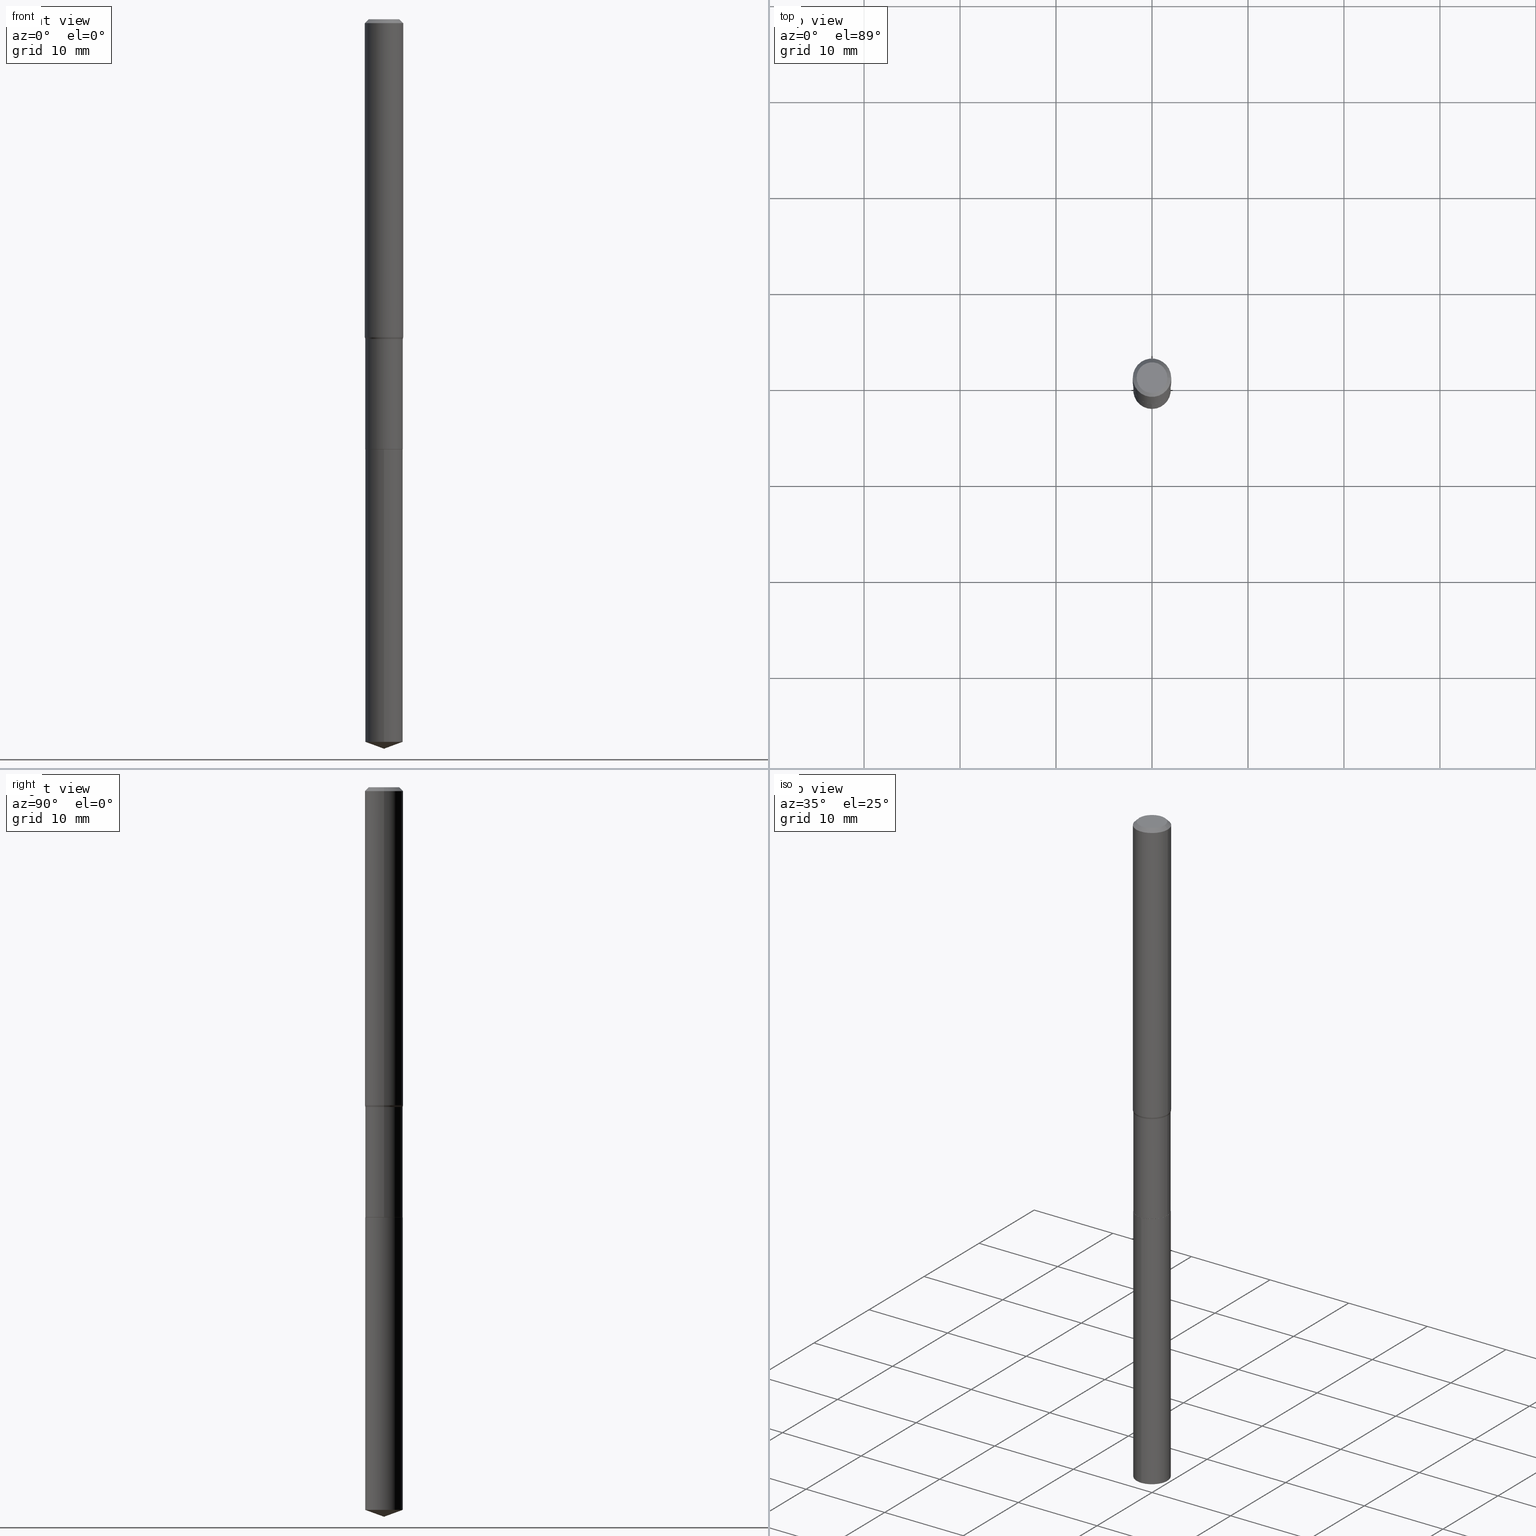
[diagram: canonical four-view strip — front | top / right | iso, engineering-drawing reading convention]
A machine part, canonical four-view strip (front | top / right | iso — engineering-drawing reading convention). The complete STEP part file that produces these views, byte-faithful:
ISO-10303-21;
HEADER;
FILE_DESCRIPTION (( 'STEP AP203' ),
    '1' );
FILE_NAME ('06029.STEP',
    '2024-04-23T19:04:45',
    ( '' ),
    ( '' ),
    'SwSTEP 2.0',
    'SolidWorks 2023',
    '' );
FILE_SCHEMA (( 'CONFIG_CONTROL_DESIGN' ));
ENDSEC;

DATA;
#1 = DIRECTION ( 'NONE',  ( 1.000000000000000000, -6.982962677686265133E-15, 0.000000000000000000 ) ) ;
#2 = EDGE_CURVE ( 'NONE', #318, #30, #306, .T. ) ;
#3 = DIRECTION ( 'NONE',  ( -2.445468806185136597E-29, 3.491481338843145583E-15, 1.000000000000000000 ) ) ;
#4 = CC_DESIGN_PERSON_AND_ORGANIZATION_ASSIGNMENT ( #188, #125, ( #406 ) ) ;
#5 = DIRECTION ( 'NONE',  ( -2.445468806185136597E-29, 3.491481338843145583E-15, 1.000000000000000000 ) ) ;
#6 = CARTESIAN_POINT ( 'NONE',  ( 0.000000000000000000, 0.000000000000000000, 0.000000000000000000 ) ) ;
#7 = VECTOR ( 'NONE', #390, 39.37007874015747433 ) ;
#8 = DIRECTION ( 'NONE',  ( 1.000000000000000000, -6.982962677686265133E-15, 0.000000000000000000 ) ) ;
#9 = DIRECTION ( 'NONE',  ( -2.445469513673863018E-29, 3.491480325679021518E-15, 1.000000000000000000 ) ) ;
#10 = LINE ( 'NONE', #20, #51 ) ;
#11 = EDGE_CURVE ( 'NONE', #247, #47, #228, .T. ) ;
#12 = CARTESIAN_POINT ( 'NONE',  ( 3.189223658526408074E-29, -4.553366152526185029E-15, -1.304135898384861436 ) ) ;
#13 = COORDINATED_UNIVERSAL_TIME_OFFSET ( 5, 0, .BEHIND. ) ;
#14 = AXIS2_PLACEMENT_3D ( 'NONE', #57, #17, #209 ) ;
#15 = APPROVAL_PERSON_ORGANIZATION ( #22, #372, #317 ) ;
#16 = ORIENTED_EDGE ( 'NONE', *, *, #11, .F. ) ;
#17 = DIRECTION ( 'NONE',  ( -2.445469513673863018E-29, 3.491480325679021518E-15, 1.000000000000000000 ) ) ;
#18 = DIRECTION ( 'NONE',  ( -2.445469513673863018E-29, 3.491480325679021518E-15, 1.000000000000000000 ) ) ;
#19 = ORIENTED_EDGE ( 'NONE', *, *, #384, .F. ) ;
#20 = CARTESIAN_POINT ( 'NONE',  ( -0.07875000000000000056, 4.949174797810136167E-16, -0.01575000000000009032 ) ) ;
#21 = CARTESIAN_POINT ( 'NONE',  ( -0.07625000000000001221, -5.616485949434463860E-15, -1.763799999999999812 ) ) ;
#22 = PERSON_AND_ORGANIZATION ( #279, #64 ) ;
#23 = ORIENTED_EDGE ( 'NONE', *, *, #348, .F. ) ;
#24 = FACE_OUTER_BOUND ( 'NONE', #370, .T. ) ;
#25 = APPROVAL_DATE_TIME ( #212, #372 ) ;
#26 = AXIS2_PLACEMENT_3D ( 'NONE', #391, #471, #200 ) ;
#27 = ORIENTED_EDGE ( 'NONE', *, *, #68, .F. ) ;
#28 = CARTESIAN_POINT ( 'NONE',  ( 4.313317880349343751E-29, -6.158274785451540536E-15, -1.763799999999999812 ) ) ;
#29 = ORIENTED_EDGE ( 'NONE', *, *, #60, .F. ) ;
#30 = VERTEX_POINT ( 'NONE', #230 ) ;
#31 = ADVANCED_FACE ( 'NONE', ( #115 ), #143, .T. ) ;
#32 = AXIS2_PLACEMENT_3D ( 'NONE', #461, #202, #350 ) ;
#33 = MANIFOLD_SOLID_BREP ( 'Body-Move/Copy2[1]', #309 ) ;
#34 = CARTESIAN_POINT ( 'NONE',  ( -5.359423855123483475E-16, -0.07675000000001032385, -2.964165284520069665 ) ) ;
#35 = CIRCLE ( 'NONE', #222, 0.07625000000000001221 ) ;
#36 = CLOSED_SHELL ( 'NONE', ( #300, #419, #466, #31, #324, #369, #66, #184, #336, #488, #445, #262 ) ) ;
#37 = MANIFOLD_SOLID_BREP ( 'Body-Move/Copy2[2]', #36 ) ;
#38 = PERSON_AND_ORGANIZATION_ROLE ( 'design_owner' ) ;
#39 = DIRECTION ( 'NONE',  ( 6.676917655467989428E-15, 0.9396926207859126468, 0.3420201433256570001 ) ) ;
#40 = CARTESIAN_POINT ( 'NONE',  ( 7.317089353748235362E-29, -1.044685828246419935E-14, -2.992100000000000204 ) ) ;
#41 = CC_DESIGN_PERSON_AND_ORGANIZATION_ASSIGNMENT ( #246, #320, ( #481 ) ) ;
#42 = FACE_OUTER_BOUND ( 'NONE', #59, .T. ) ;
#43 = ORIENTED_EDGE ( 'NONE', *, *, #289, .F. ) ;
#44 = CONICAL_SURFACE ( 'NONE', #295, 0.07625000000000001221, 0.7853981633975507526 ) ;
#45 = DIRECTION ( 'NONE',  ( -2.445468806185136597E-29, 3.491481338843145583E-15, 1.000000000000000000 ) ) ;
#46 = DIRECTION ( 'NONE',  ( -2.445468806185136877E-29, 3.491481338843145188E-15, 1.000000000000000000 ) ) ;
#47 = VERTEX_POINT ( 'NONE', #418 ) ;
#48 = CARTESIAN_POINT ( 'NONE',  ( 3.851613369741612172E-31, -5.499083108677985842E-17, -0.01575000000000009032 ) ) ;
#49 = EDGE_CURVE ( 'NONE', #429, #381, #380, .T. ) ;
#50 = CARTESIAN_POINT ( 'NONE',  ( 4.312095145946251510E-29, -6.156529044782119032E-15, -1.763300000000000090 ) ) ;
#51 = VECTOR ( 'NONE', #129, 39.37007874015748854 ) ;
#52 = LINE ( 'NONE', #245, #256 ) ;
#53 = EDGE_LOOP ( 'NONE', ( #472, #65, #396 ) ) ;
#54 = LINE ( 'NONE', #281, #114 ) ;
#55 = CARTESIAN_POINT ( 'NONE',  ( 7.317089331863565337E-29, -1.044685828246419935E-14, -2.992100000000000204 ) ) ;
#56 = VERTEX_POINT ( 'NONE', #198 ) ;
#57 = CARTESIAN_POINT ( 'NONE',  ( 4.313317880349343751E-29, -6.158274785451540536E-15, -1.763799999999999812 ) ) ;
#58 = DIRECTION ( 'NONE',  ( 0.7071067811866199593, -2.468850131083015945E-15, 0.7071067811864750752 ) ) ;
#59 = EDGE_LOOP ( 'NONE', ( #214, #355 ) ) ;
#60 = EDGE_CURVE ( 'NONE', #438, #442, #224, .T. ) ;
#61 = CALENDAR_DATE ( 2024, 23, 4 ) ;
#62 = ORIENTED_EDGE ( 'NONE', *, *, #107, .F. ) ;
#63 = CARTESIAN_POINT ( 'NONE',  ( 7.317086836126334158E-29, -1.044686185650196432E-14, -2.992100000000000204 ) ) ;
#64 = ORGANIZATION ( 'UNSPECIFIED', 'UNSPECIFIED', '' ) ;
#65 = ORIENTED_EDGE ( 'NONE', *, *, #440, .T. ) ;
#66 = ADVANCED_FACE ( 'NONE', ( #415 ), #292, .T. ) ;
#67 = ORIENTED_EDGE ( 'NONE', *, *, #414, .F. ) ;
#68 = EDGE_CURVE ( 'NONE', #247, #327, #373, .T. ) ;
#69 = CARTESIAN_POINT ( 'NONE',  ( -0.07875000000000016709, -3.993813748115104650E-15, -1.304135898384861436 ) ) ;
#70 = AXIS2_PLACEMENT_3D ( 'NONE', #424, #155, #303 ) ;
#71 = CIRCLE ( 'NONE', #383, 0.07625000000000001221 ) ;
#72 = APPLICATION_PROTOCOL_DEFINITION ( 'international standard', 'config_control_design', 1994, #433 ) ;
#73 = CARTESIAN_POINT ( 'NONE',  ( 5.453415496959199755E-16, 0.07674999999999385092, -1.763800000000000257 ) ) ;
#74 = AXIS2_PLACEMENT_3D ( 'NONE', #392, #136, #286 ) ;
#75 = EDGE_CURVE ( 'NONE', #30, #56, #201, .T. ) ;
#76 = DIRECTION ( 'NONE',  ( -2.445469513673863018E-29, 3.491480325679021518E-15, 1.000000000000000000 ) ) ;
#77 = AXIS2_PLACEMENT_3D ( 'NONE', #120, #397, #175 ) ;
#78 = DIRECTION ( 'NONE',  ( -2.445468806185136597E-29, 3.491481338843145583E-15, 1.000000000000000000 ) ) ;
#79 = CYLINDRICAL_SURFACE ( 'NONE', #32, 0.07674999999999997102 ) ;
#80 = CARTESIAN_POINT ( 'NONE',  ( 3.207476886192425525E-29, -4.579426924026669600E-15, -1.311600000000000099 ) ) ;
#81 = CARTESIAN_POINT ( 'NONE',  ( -0.06300000000000000044, 4.674220642376242452E-16, -3.855188123719040041E-18 ) ) ;
#82 = DIRECTION ( 'NONE',  ( 1.000000000000000000, -6.982962677686265133E-15, 0.000000000000000000 ) ) ;
#83 = DIRECTION ( 'NONE',  ( -0.7071067811866199593, 7.493145998870616062E-15, 0.7071067811864750752 ) ) ;
#84 = DIRECTION ( 'NONE',  ( -6.982962677686265133E-15, -1.000000000000000000, 3.559411066663534686E-15 ) ) ;
#85 = ORIENTED_EDGE ( 'NONE', *, *, #275, .F. ) ;
#86 = CARTESIAN_POINT ( 'NONE',  ( -5.359423855123778312E-16, -0.07675000000000616052, -1.763799999999999590 ) ) ;
#87 = ORIENTED_EDGE ( 'NONE', *, *, #486, .F. ) ;
#88 = DIRECTION ( 'NONE',  ( -2.445468806185136597E-29, 3.491481338843145583E-15, 1.000000000000000000 ) ) ;
#89 = CIRCLE ( 'NONE', #449, 0.07675000000000001266 ) ;
#90 = DIRECTION ( 'NONE',  ( 2.445468806185136597E-29, -3.491481338843145583E-15, -1.000000000000000000 ) ) ;
#91 = AXIS2_PLACEMENT_3D ( 'NONE', #240, #243, #84 ) ;
#92 = LOCAL_TIME ( 15, 4, 45.00000000000000000, #237 ) ;
#93 = EDGE_LOOP ( 'NONE', ( #371, #325, #27, #297 ) ) ;
#94 = CC_DESIGN_PERSON_AND_ORGANIZATION_ASSIGNMENT ( #291, #441, ( #296 ) ) ;
#95 = DIRECTION ( 'NONE',  ( 1.000000000000000000, -6.982962677686265922E-15, 0.000000000000000000 ) ) ;
#96 = DATE_AND_TIME ( #142, #411 ) ;
#97 = VECTOR ( 'NONE', #39, 39.37007874015748143 ) ;
#98 = CIRCLE ( 'NONE', #77, 0.06300000000000000044 ) ;
#99 = ORIENTED_EDGE ( 'NONE', *, *, #252, .F. ) ;
#100 = VECTOR ( 'NONE', #46, 39.37007874015748143 ) ;
#101 = ORIENTED_EDGE ( 'NONE', *, *, #334, .T. ) ;
#102 = ORIENTED_EDGE ( 'NONE', *, *, #440, .F. ) ;
#103 = EDGE_CURVE ( 'NONE', #438, #247, #118, .T. ) ;
#104 = CIRCLE ( 'NONE', #226, 0.07675000000000001266 ) ;
#105 = ORIENTED_EDGE ( 'NONE', *, *, #160, .F. ) ;
#106 = ORIENTED_EDGE ( 'NONE', *, *, #358, .T. ) ;
#107 = EDGE_CURVE ( 'NONE', #269, #177, #35, .T. ) ;
#108 = LINE ( 'NONE', #63, #179 ) ;
#109 = AXIS2_PLACEMENT_3D ( 'NONE', #422, #45, #197 ) ;
#110 = FACE_OUTER_BOUND ( 'NONE', #254, .T. ) ;
#111 = PRODUCT_RELATED_PRODUCT_CATEGORY ( 'detail', '', ( #447 ) ) ;
#112 = DIRECTION ( 'NONE',  ( 0.000000000000000000, 0.000000000000000000, 1.000000000000000000 ) ) ;
#113 = AXIS2_PLACEMENT_3D ( 'NONE', #345, #308, #460 ) ;
#114 = VECTOR ( 'NONE', #430, 39.37007874015748854 ) ;
#115 = FACE_OUTER_BOUND ( 'NONE', #236, .T. ) ;
#116 = CARTESIAN_POINT ( 'NONE',  ( 9.427742298522557911E-47, -1.346031739168366987E-32, -3.855188123715866879E-18 ) ) ;
#117 = AXIS2_PLACEMENT_3D ( 'NONE', #368, #260, #95 ) ;
#118 = LINE ( 'NONE', #341, #249 ) ;
#119 = ORIENTED_EDGE ( 'NONE', *, *, #145, .F. ) ;
#120 = CARTESIAN_POINT ( 'NONE',  ( 9.427742298522557911E-47, -1.346031739168366987E-32, -3.855188123715866879E-18 ) ) ;
#121 = ADVANCED_FACE ( 'NONE', ( #462 ), #290, .T. ) ;
#122 = SHAPE_DEFINITION_REPRESENTATION ( #487, #128 ) ;
#123 = FACE_OUTER_BOUND ( 'NONE', #294, .T. ) ;
#124 = ORIENTED_EDGE ( 'NONE', *, *, #49, .T. ) ;
#125 = PERSON_AND_ORGANIZATION_ROLE ( 'classification_officer' ) ;
#126 = APPROVAL_PERSON_ORGANIZATION ( #253, #398, #137 ) ;
#127 = CARTESIAN_POINT ( 'NONE',  ( -0.07674999999999994327, -4.034085374330792814E-15, -1.311600000000000099 ) ) ;
#128 = ADVANCED_BREP_SHAPE_REPRESENTATION ( '06029', ( #33, #37, #489 ), #152 ) ;
#129 = DIRECTION ( 'NONE',  ( -0.7071067811865454633, 2.468850131082235761E-15, -0.7071067811865493491 ) ) ;
#130 = CARTESIAN_POINT ( 'NONE',  ( 3.851613369741612172E-31, -5.499083108677985842E-17, -0.01575000000000009032 ) ) ;
#131 = ORIENTED_EDGE ( 'NONE', *, *, #265, .T. ) ;
#132 = DIRECTION ( 'NONE',  ( -2.445469513673863018E-29, 3.491480325679021518E-15, 1.000000000000000000 ) ) ;
#133 = APPROVAL_ROLE ( '' ) ;
#134 = CYLINDRICAL_SURFACE ( 'NONE', #159, 0.07674999999999997102 ) ;
#135 = ORIENTED_EDGE ( 'NONE', *, *, #476, .T. ) ;
#136 = DIRECTION ( 'NONE',  ( -2.445468806185136597E-29, 3.491481338843145583E-15, 1.000000000000000000 ) ) ;
#137 = APPROVAL_ROLE ( '' ) ;
#138 = AXIS2_PLACEMENT_3D ( 'NONE', #176, #323, #241 ) ;
#139 = CC_DESIGN_SECURITY_CLASSIFICATION ( #406, ( #296 ) ) ;
#140 = VERTEX_POINT ( 'NONE', #156 ) ;
#141 = MECHANICAL_CONTEXT ( 'NONE', #433, 'mechanical' ) ;
#142 = CALENDAR_DATE ( 2024, 23, 4 ) ;
#143 = CONICAL_SURFACE ( 'NONE', #374, 0.07674999999999994327, 0.2617993877991501295 ) ;
#144 = EDGE_LOOP ( 'NONE', ( #180, #299, #379, #425 ) ) ;
#145 = EDGE_CURVE ( 'NONE', #477, #30, #307, .T. ) ;
#146 = AXIS2_PLACEMENT_3D ( 'NONE', #50, #349, #227 ) ;
#147 = ORIENTED_EDGE ( 'NONE', *, *, #49, .F. ) ;
#148 = CONICAL_SURFACE ( 'NONE', #138, 108.1684023407361792, 1.221730476396039711 ) ;
#149 = EDGE_LOOP ( 'NONE', ( #87, #257, #364, #242 ) ) ;
#150 = DIRECTION ( 'NONE',  ( 1.000000000000000000, -6.982962677686265922E-15, 4.876176775795935793E-29 ) ) ;
#151 = SECURITY_CLASSIFICATION_LEVEL ( 'unclassified' ) ;
#152 =( GEOMETRIC_REPRESENTATION_CONTEXT ( 3 ) GLOBAL_UNCERTAINTY_ASSIGNED_CONTEXT ( ( #417 ) ) GLOBAL_UNIT_ASSIGNED_CONTEXT ( ( #478, #365, #220 ) ) REPRESENTATION_CONTEXT ( 'NONE', 'WORKASPACE' ) );
#153 = CC_DESIGN_APPROVAL ( #372, ( #296 ) ) ;
#154 =( LENGTH_UNIT ( ) NAMED_UNIT ( * ) SI_UNIT ( $, .METRE. ) );
#155 = DIRECTION ( 'NONE',  ( -2.445469513673863018E-29, 3.491480325679021518E-15, 1.000000000000000000 ) ) ;
#156 = CARTESIAN_POINT ( 'NONE',  ( 0.07875000000000000056, -6.048991419545733705E-16, -0.01575000000000009032 ) ) ;
#157 = EDGE_LOOP ( 'NONE', ( #272, #480, #468, #135 ) ) ;
#158 = FACE_OUTER_BOUND ( 'NONE', #331, .T. ) ;
#159 = AXIS2_PLACEMENT_3D ( 'NONE', #6, #273, #359 ) ;
#160 = EDGE_CURVE ( 'NONE', #444, #403, #389, .T. ) ;
#161 = PLANE ( 'NONE',  #113 ) ;
#162 = FACE_OUTER_BOUND ( 'NONE', #157, .T. ) ;
#163 = CARTESIAN_POINT ( 'NONE',  ( 3.207476886192425525E-29, -4.579426924026669600E-15, -1.311600000000000099 ) ) ;
#164 = DIRECTION ( 'NONE',  ( -0.2588190451025214611, 5.211531920934551042E-15, 0.9659258262890682012 ) ) ;
#165 = DIRECTION ( 'NONE',  ( 1.000000000000000000, -6.982962677686271444E-15, 0.000000000000000000 ) ) ;
#166 = CC_DESIGN_APPROVAL ( #398, ( #481 ) ) ;
#167 = AXIS2_PLACEMENT_3D ( 'NONE', #270, #393, #312 ) ;
#168 = DIRECTION ( 'NONE',  ( -2.445468806185136597E-29, 3.491481338843145583E-15, 1.000000000000000000 ) ) ;
#169 = LOCAL_TIME ( 15, 4, 45.00000000000000000, #402 ) ;
#170 = DATE_TIME_ROLE ( 'creation_date' ) ;
#171 = ORIENTED_EDGE ( 'NONE', *, *, #145, .T. ) ;
#172 = DIRECTION ( 'NONE',  ( -6.982962677686265133E-15, -1.000000000000000000, 3.559411066663534686E-15 ) ) ;
#173 = LINE ( 'NONE', #127, #195 ) ;
#174 = ORIENTED_EDGE ( 'NONE', *, *, #160, .T. ) ;
#175 = DIRECTION ( 'NONE',  ( 1.000000000000000000, -6.982962677686265922E-15, 4.875905316334701673E-29 ) ) ;
#176 = CARTESIAN_POINT ( 'NONE',  ( -8.896123922599965790E-28, 1.270129952722106834E-13, 36.37797874015748079 ) ) ;
#177 = VERTEX_POINT ( 'NONE', #266 ) ;
#178 = CARTESIAN_POINT ( 'NONE',  ( -0.07674999999999997102, 5.453415496958766868E-16, -3.775282681770638931E-30 ) ) ;
#179 = VECTOR ( 'NONE', #298, 39.37007874015748854 ) ;
#180 = ORIENTED_EDGE ( 'NONE', *, *, #75, .F. ) ;
#181 = PLANE ( 'NONE',  #475 ) ;
#182 = ORIENTED_EDGE ( 'NONE', *, *, #239, .F. ) ;
#183 = ORIENTED_EDGE ( 'NONE', *, *, #342, .F. ) ;
#184 = ADVANCED_FACE ( 'NONE', ( #158 ), #458, .T. ) ;
#185 = DIRECTION ( 'NONE',  ( 2.438088387897960049E-29, -3.491481338843145188E-15, -1.000000000000000000 ) ) ;
#186 = APPROVAL ( #346, 'UNSPECIFIED' ) ;
#187 = CARTESIAN_POINT ( 'NONE',  ( 0.000000000000000000, 0.000000000000000000, 0.000000000000000000 ) ) ;
#188 = PERSON_AND_ORGANIZATION ( #279, #64 ) ;
#189 = CIRCLE ( 'NONE', #14, 0.07675000000000001266 ) ;
#190 = ADVANCED_FACE ( 'NONE', ( #42 ), #161, .F. ) ;
#191 = APPLICATION_PROTOCOL_DEFINITION ( 'international standard', 'config_control_design', 1994, #457 ) ;
#192 = DIRECTION ( 'NONE',  ( -2.445468806185136597E-29, 3.491481338843145583E-15, 1.000000000000000000 ) ) ;
#193 = CARTESIAN_POINT ( 'NONE',  ( 3.207476886192425525E-29, -4.579426924026669600E-15, -1.311600000000000099 ) ) ;
#194 = DIRECTION ( 'NONE',  ( 1.000000000000000000, -6.982962677686265922E-15, 4.875905316334701673E-29 ) ) ;
#195 = VECTOR ( 'NONE', #164, 39.37007874015747433 ) ;
#196 = DATE_AND_TIME ( #282, #92 ) ;
#197 = DIRECTION ( 'NONE',  ( 1.000000000000000000, -6.982962677686271444E-15, 0.000000000000000000 ) ) ;
#198 = CARTESIAN_POINT ( 'NONE',  ( 5.453415496959496564E-16, 0.07674999999999386480, -1.763800000000000257 ) ) ;
#199 = AXIS2_PLACEMENT_3D ( 'NONE', #116, #3, #194 ) ;
#200 = DIRECTION ( 'NONE',  ( 1.000000000000000000, -6.982962677686265133E-15, 0.000000000000000000 ) ) ;
#201 = LINE ( 'NONE', #73, #401 ) ;
#202 = DIRECTION ( 'NONE',  ( -2.445468806185136597E-29, 3.491481338843145583E-15, 1.000000000000000000 ) ) ;
#203 = ORIENTED_EDGE ( 'NONE', *, *, #275, .T. ) ;
#204 = CARTESIAN_POINT ( 'NONE',  ( 4.313317880349343751E-29, -6.158274785451540536E-15, -1.763799999999999812 ) ) ;
#205 = EDGE_CURVE ( 'NONE', #403, #444, #98, .T. ) ;
#206 = AXIS2_PLACEMENT_3D ( 'NONE', #12, #168, #316 ) ;
#207 = CARTESIAN_POINT ( 'NONE',  ( -0.07674999999999994327, -4.822636434708517136E-15, -1.311600000000000099 ) ) ;
#208 = EDGE_LOOP ( 'NONE', ( #216, #203, #29, #421 ) ) ;
#209 = DIRECTION ( 'NONE',  ( -6.982962677686265133E-15, -1.000000000000000000, 3.559411066663534686E-15 ) ) ;
#210 = CARTESIAN_POINT ( 'NONE',  ( 0.07625000000000001221, -6.690725689625118057E-15, -1.763799999999999812 ) ) ;
#211 = ORIENTED_EDGE ( 'NONE', *, *, #225, .F. ) ;
#212 = DATE_AND_TIME ( #61, #169 ) ;
#213 = EDGE_CURVE ( 'NONE', #444, #140, #54, .T. ) ;
#214 = ORIENTED_EDGE ( 'NONE', *, *, #252, .T. ) ;
#215 = CARTESIAN_POINT ( 'NONE',  ( 0.000000000000000000, 0.000000000000000000, 0.000000000000000000 ) ) ;
#216 = ORIENTED_EDGE ( 'NONE', *, *, #229, .T. ) ;
#217 = AXIS2_PLACEMENT_3D ( 'NONE', #268, #78, #382 ) ;
#218 = EDGE_LOOP ( 'NONE', ( #171, #251, #99, #23 ) ) ;
#219 = CONICAL_SURFACE ( 'NONE', #302, 0.07875000000000000056, 0.7853981633974456145 ) ;
#220 =( NAMED_UNIT ( * ) SI_UNIT ( $, .STERADIAN. ) SOLID_ANGLE_UNIT ( ) );
#221 = CALENDAR_DATE ( 2024, 23, 4 ) ;
#222 = AXIS2_PLACEMENT_3D ( 'NONE', #490, #5, #1 ) ;
#223 = LINE ( 'NONE', #178, #394 ) ;
#224 = CIRCLE ( 'NONE', #146, 0.07675000000000001266 ) ;
#225 = EDGE_CURVE ( 'NONE', #403, #381, #10, .T. ) ;
#226 = AXIS2_PLACEMENT_3D ( 'NONE', #420, #18, #463 ) ;
#227 = DIRECTION ( 'NONE',  ( 1.000000000000000000, -6.982962677686271444E-15, 0.000000000000000000 ) ) ;
#228 = LINE ( 'NONE', #311, #7 ) ;
#229 = EDGE_CURVE ( 'NONE', #177, #269, #71, .T. ) ;
#230 = CARTESIAN_POINT ( 'NONE',  ( 5.453415496959491634E-16, 0.07674999999998964595, -2.964165284520069665 ) ) ;
#231 = EDGE_CURVE ( 'NONE', #56, #271, #89, .T. ) ;
#232 = CIRCLE ( 'NONE', #244, 0.07875000000000016709 ) ;
#233 = FACE_OUTER_BOUND ( 'NONE', #208, .T. ) ;
#234 = DIRECTION ( 'NONE',  ( -2.445468806185136597E-29, 3.491481338843145583E-15, 1.000000000000000000 ) ) ;
#235 = FACE_OUTER_BOUND ( 'NONE', #144, .T. ) ;
#236 = EDGE_LOOP ( 'NONE', ( #293, #446, #182, #16 ) ) ;
#237 = COORDINATED_UNIVERSAL_TIME_OFFSET ( 5, 0, .BEHIND. ) ;
#238 = LINE ( 'NONE', #426, #434 ) ;
#239 = EDGE_CURVE ( 'NONE', #47, #429, #232, .T. ) ;
#240 = CARTESIAN_POINT ( 'NONE',  ( 4.313317880349343751E-29, -6.158274785451540536E-15, -1.763799999999999812 ) ) ;
#241 = DIRECTION ( 'NONE',  ( -6.982962677686265922E-15, -1.000000000000000000, 3.475157955500633045E-15 ) ) ;
#242 = ORIENTED_EDGE ( 'NONE', *, *, #265, .F. ) ;
#243 = DIRECTION ( 'NONE',  ( -2.445469513673863018E-29, 3.491480325679021518E-15, 1.000000000000000000 ) ) ;
#244 = AXIS2_PLACEMENT_3D ( 'NONE', #464, #277, #165 ) ;
#245 = CARTESIAN_POINT ( 'NONE',  ( -5.359423855123778312E-16, -0.07675000000000616052, -1.763799999999999590 ) ) ;
#246 = PERSON_AND_ORGANIZATION ( #279, #64 ) ;
#247 = VERTEX_POINT ( 'NONE', #361 ) ;
#248 = ADVANCED_FACE ( 'NONE', ( #427 ), #319, .T. ) ;
#249 = VECTOR ( 'NONE', #416, 39.37007874015748143 ) ;
#250 = APPROVAL_STATUS ( 'not_yet_approved' ) ;
#251 = ORIENTED_EDGE ( 'NONE', *, *, #75, .T. ) ;
#252 = EDGE_CURVE ( 'NONE', #271, #56, #189, .T. ) ;
#253 = PERSON_AND_ORGANIZATION ( #279, #64 ) ;
#254 = EDGE_LOOP ( 'NONE', ( #407, #124, #43, #329 ) ) ;
#255 = CC_DESIGN_DATE_AND_TIME_ASSIGNMENT ( #196, #352, ( #406 ) ) ;
#256 = VECTOR ( 'NONE', #385, 39.37007874015748143 ) ;
#257 = ORIENTED_EDGE ( 'NONE', *, *, #384, .T. ) ;
#258 = FACE_OUTER_BOUND ( 'NONE', #400, .T. ) ;
#259 = AXIS2_PLACEMENT_3D ( 'NONE', #335, #185, #375 ) ;
#260 = DIRECTION ( 'NONE',  ( -2.445468806185136597E-29, 3.491481338843145583E-15, 1.000000000000000000 ) ) ;
#261 = DIMENSIONAL_EXPONENTS ( 1.000000000000000000, 0.000000000000000000, 0.000000000000000000, 0.000000000000000000, 0.000000000000000000, 0.000000000000000000, 0.000000000000000000 ) ;
#262 = ADVANCED_FACE ( 'NONE', ( #314 ), #44, .T. ) ;
#263 = DIRECTION ( 'NONE',  ( 1.000000000000000000, 0.000000000000000000, 0.000000000000000000 ) ) ;
#264 = DIRECTION ( 'NONE',  ( -2.445468806185136597E-29, 3.491481338843145583E-15, 1.000000000000000000 ) ) ;
#265 = EDGE_CURVE ( 'NONE', #327, #247, #485, .T. ) ;
#266 = CARTESIAN_POINT ( 'NONE',  ( 0.07625000000000001221, -6.690725689625118057E-15, -1.763799999999999812 ) ) ;
#267 = CC_DESIGN_PERSON_AND_ORGANIZATION_ASSIGNMENT ( #326, #479, ( #296 ) ) ;
#268 = CARTESIAN_POINT ( 'NONE',  ( 0.000000000000000000, 0.000000000000000000, 0.000000000000000000 ) ) ;
#269 = VERTEX_POINT ( 'NONE', #436 ) ;
#270 = CARTESIAN_POINT ( 'NONE',  ( 3.851613369741612172E-31, -5.499083108677985842E-17, -0.01575000000000009032 ) ) ;
#271 = VERTEX_POINT ( 'NONE', #86 ) ;
#272 = ORIENTED_EDGE ( 'NONE', *, *, #213, .F. ) ;
#273 = DIRECTION ( 'NONE',  ( -2.445468806185136597E-29, 3.491481338843145583E-15, 1.000000000000000000 ) ) ;
#274 = CARTESIAN_POINT ( 'NONE',  ( -0.07875000000000008382, 5.595524044110794920E-16, -3.873661383575742696E-30 ) ) ;
#275 = EDGE_CURVE ( 'NONE', #269, #442, #276, .T. ) ;
#276 = LINE ( 'NONE', #21, #367 ) ;
#277 = DIRECTION ( 'NONE',  ( -2.445468806185136597E-29, 3.491481338843145583E-15, 1.000000000000000000 ) ) ;
#278 = DIRECTION ( 'NONE',  ( 2.445468806185136597E-29, -3.491481338843145583E-15, -1.000000000000000000 ) ) ;
#279 = PERSON ( 'UNSPECIFIED', 'UNSPECIFIED', 'UNSPECIFIED', ('UNSPECIFIED'), ('UNSPECIFIED'), ('UNSPECIFIED') ) ;
#280 = ORIENTED_EDGE ( 'NONE', *, *, #476, .F. ) ;
#281 = CARTESIAN_POINT ( 'NONE',  ( 0.07875000000000000056, -5.952550484112880131E-16, -0.01575000000000009032 ) ) ;
#282 = CALENDAR_DATE ( 2024, 23, 4 ) ;
#283 = DIRECTION ( 'NONE',  ( -2.445468806185136877E-29, 3.491481338843145188E-15, 1.000000000000000000 ) ) ;
#284 = DATE_AND_TIME ( #221, #410 ) ;
#285 = EDGE_LOOP ( 'NONE', ( #183, #131, #435, #67 ) ) ;
#286 = DIRECTION ( 'NONE',  ( 1.000000000000000000, -6.982962677686265133E-15, 0.000000000000000000 ) ) ;
#287 = CARTESIAN_POINT ( 'NONE',  ( 0.06300000000000000044, -5.137332111354472216E-16, -3.855188123712532709E-18 ) ) ;
#288 = ORIENTED_EDGE ( 'NONE', *, *, #107, .T. ) ;
#289 = EDGE_CURVE ( 'NONE', #140, #381, #313, .T. ) ;
#290 = CONICAL_SURFACE ( 'NONE', #70, 108.1684023407361792, 1.221730476396039711 ) ;
#291 = PERSON_AND_ORGANIZATION ( #279, #64 ) ;
#292 = CONICAL_SURFACE ( 'NONE', #333, 0.07674999999999994327, 0.2617993877991501295 ) ;
#293 = ORIENTED_EDGE ( 'NONE', *, *, #68, .T. ) ;
#294 = EDGE_LOOP ( 'NONE', ( #102, #405, #119 ) ) ;
#295 = AXIS2_PLACEMENT_3D ( 'NONE', #351, #469, #473 ) ;
#296 = PRODUCT_DEFINITION_FORMATION_WITH_SPECIFIED_SOURCE ( 'ANY', '', #447, .NOT_KNOWN. ) ;
#297 = ORIENTED_EDGE ( 'NONE', *, *, #103, .F. ) ;
#298 = DIRECTION ( 'NONE',  ( -6.561838499445221362E-15, -0.9396926207859103153, 0.3420201433256635504 ) ) ;
#299 = ORIENTED_EDGE ( 'NONE', *, *, #330, .T. ) ;
#300 = ADVANCED_FACE ( 'NONE', ( #233 ), #354, .T. ) ;
#301 = CARTESIAN_POINT ( 'NONE',  ( -0.07675000000000001266, -4.822636434708517136E-15, -1.763300000000000090 ) ) ;
#302 = AXIS2_PLACEMENT_3D ( 'NONE', #48, #90, #310 ) ;
#303 = DIRECTION ( 'NONE',  ( -6.982962677686265922E-15, -1.000000000000000000, 3.475157955500633045E-15 ) ) ;
#304 = CARTESIAN_POINT ( 'NONE',  ( 7.248774588915626534E-29, -1.034932655998146602E-14, -2.964165284520069665 ) ) ;
#305 = AXIS2_PLACEMENT_3D ( 'NONE', #388, #9, #353 ) ;
#306 = LINE ( 'NONE', #40, #97 ) ;
#307 = CIRCLE ( 'NONE', #413, 0.07675000000000001266 ) ;
#308 = DIRECTION ( 'NONE',  ( 2.445469513673862738E-29, -3.491480325679021518E-15, -1.000000000000000000 ) ) ;
#309 = CLOSED_SHELL ( 'NONE', ( #248, #378, #121, #404, #190 ) ) ;
#310 = DIRECTION ( 'NONE',  ( -1.000000000000000000, 6.982962677686265922E-15, 0.000000000000000000 ) ) ;
#311 = CARTESIAN_POINT ( 'NONE',  ( 0.07674999999999994327, -5.115369309539090128E-15, -1.311600000000000099 ) ) ;
#312 = DIRECTION ( 'NONE',  ( 1.000000000000000000, -6.982962677686265922E-15, 0.000000000000000000 ) ) ;
#313 = CIRCLE ( 'NONE', #167, 0.07875000000000000056 ) ;
#314 = FACE_OUTER_BOUND ( 'NONE', #321, .T. ) ;
#315 = PERSON_AND_ORGANIZATION ( #279, #64 ) ;
#316 = DIRECTION ( 'NONE',  ( 1.000000000000000000, -6.982962677686271444E-15, 0.000000000000000000 ) ) ;
#317 = APPROVAL_ROLE ( '' ) ;
#318 = VERTEX_POINT ( 'NONE', #55 ) ;
#319 = CYLINDRICAL_SURFACE ( 'NONE', #91, 0.07675000000000001266 ) ;
#320 = PERSON_AND_ORGANIZATION_ROLE ( 'creator' ) ;
#321 = EDGE_LOOP ( 'NONE', ( #85, #288, #106, #19 ) ) ;
#322 = DIRECTION ( 'NONE',  ( 1.000000000000000000, -6.982962677686265133E-15, 0.000000000000000000 ) ) ;
#323 = DIRECTION ( 'NONE',  ( -2.445469513673863018E-29, 3.491480325679021518E-15, 1.000000000000000000 ) ) ;
#324 = ADVANCED_FACE ( 'NONE', ( #432 ), #134, .T. ) ;
#325 = ORIENTED_EDGE ( 'NONE', *, *, #486, .T. ) ;
#326 = PERSON_AND_ORGANIZATION ( #279, #64 ) ;
#327 = VERTEX_POINT ( 'NONE', #207 ) ;
#328 = CARTESIAN_POINT ( 'NONE',  ( 0.07675000000000001266, -6.692471430294540350E-15, -1.763300000000000090 ) ) ;
#329 = ORIENTED_EDGE ( 'NONE', *, *, #334, .F. ) ;
#330 = EDGE_CURVE ( 'NONE', #30, #477, #104, .T. ) ;
#331 = EDGE_LOOP ( 'NONE', ( #147, #483, #101, #280 ) ) ;
#332 = AXIS2_PLACEMENT_3D ( 'NONE', #215, #450, #437 ) ;
#333 = AXIS2_PLACEMENT_3D ( 'NONE', #193, #264, #8 ) ;
#334 = EDGE_CURVE ( 'NONE', #47, #140, #238, .T. ) ;
#335 = CARTESIAN_POINT ( 'NONE',  ( 4.713871149261278955E-47, -6.730158695841834933E-33, -1.927594061857933439E-18 ) ) ;
#336 = ADVANCED_FACE ( 'NONE', ( #162 ), #219, .T. ) ;
#337 = DIRECTION ( 'NONE',  ( -2.445468806185136877E-29, 3.491481338843145188E-15, 1.000000000000000000 ) ) ;
#338 = CONICAL_SURFACE ( 'NONE', #409, 0.07875000000000000056, 0.7853981633974456145 ) ;
#339 = CC_DESIGN_APPROVAL ( #186, ( #406 ) ) ;
#340 = APPROVAL_STATUS ( 'not_yet_approved' ) ;
#341 = CARTESIAN_POINT ( 'NONE',  ( 0.07674999999999997102, -5.359423855124207255E-16, 3.742465675423379404E-30 ) ) ;
#342 = EDGE_CURVE ( 'NONE', #327, #429, #173, .T. ) ;
#343 = DIRECTION ( 'NONE',  ( -2.445469513673863018E-29, 3.491480325679021518E-15, 1.000000000000000000 ) ) ;
#344 = DESIGN_CONTEXT ( 'detailed design', #457, 'design' ) ;
#345 = CARTESIAN_POINT ( 'NONE',  ( 4.313317880349343751E-29, -6.158274785451540536E-15, -1.763799999999999812 ) ) ;
#346 = APPROVAL_STATUS ( 'not_yet_approved' ) ;
#347 = CYLINDRICAL_SURFACE ( 'NONE', #305, 0.07675000000000001266 ) ;
#348 = EDGE_CURVE ( 'NONE', #477, #271, #52, .T. ) ;
#349 = DIRECTION ( 'NONE',  ( -2.445468806185136597E-29, 3.491481338843145583E-15, 1.000000000000000000 ) ) ;
#350 = DIRECTION ( 'NONE',  ( 1.000000000000000000, -6.982962677686265922E-15, 4.876176775795935793E-29 ) ) ;
#351 = CARTESIAN_POINT ( 'NONE',  ( 4.313317880349343751E-29, -6.158274785451540536E-15, -1.763799999999999812 ) ) ;
#352 = DATE_TIME_ROLE ( 'classification_date' ) ;
#353 = DIRECTION ( 'NONE',  ( -6.982962677686265133E-15, -1.000000000000000000, 3.559411066663534686E-15 ) ) ;
#354 = CONICAL_SURFACE ( 'NONE', #26, 0.07625000000000001221, 0.7853981633975507526 ) ;
#355 = ORIENTED_EDGE ( 'NONE', *, *, #231, .T. ) ;
#356 = CARTESIAN_POINT ( 'NONE',  ( 4.313317880349343751E-29, -6.158274785451540536E-15, -1.763799999999999812 ) ) ;
#357 = COORDINATED_UNIVERSAL_TIME_OFFSET ( 5, 0, .BEHIND. ) ;
#358 = EDGE_CURVE ( 'NONE', #177, #438, #399, .T. ) ;
#359 = DIRECTION ( 'NONE',  ( 1.000000000000000000, -6.982962677686265922E-15, 4.876176775795935793E-29 ) ) ;
#360 = ORIENTED_EDGE ( 'NONE', *, *, #229, .F. ) ;
#361 = CARTESIAN_POINT ( 'NONE',  ( 0.07674999999999994327, -5.115369309539090128E-15, -1.311600000000000099 ) ) ;
#362 = FACE_OUTER_BOUND ( 'NONE', #149, .T. ) ;
#363 = APPROVAL_DATE_TIME ( #96, #398 ) ;
#364 = ORIENTED_EDGE ( 'NONE', *, *, #103, .T. ) ;
#365 =( NAMED_UNIT ( * ) PLANE_ANGLE_UNIT ( ) SI_UNIT ( $, .RADIAN. ) );
#366 = EDGE_LOOP ( 'NONE', ( #105, #395, #484, #211 ) ) ;
#367 = VECTOR ( 'NONE', #83, 39.37007874015748143 ) ;
#368 = CARTESIAN_POINT ( 'NONE',  ( 3.851613369741612172E-31, -5.499083108677985842E-17, -0.01575000000000009032 ) ) ;
#369 = ADVANCED_FACE ( 'NONE', ( #362 ), #79, .T. ) ;
#370 = EDGE_LOOP ( 'NONE', ( #454, #174 ) ) ;
#371 = ORIENTED_EDGE ( 'NONE', *, *, #60, .T. ) ;
#372 = APPROVAL ( #250, 'UNSPECIFIED' ) ;
#373 = CIRCLE ( 'NONE', #439, 0.07674999999999994327 ) ;
#374 = AXIS2_PLACEMENT_3D ( 'NONE', #80, #234, #387 ) ;
#375 = DIRECTION ( 'NONE',  ( -1.000000000000000000, 6.982962677686265922E-15, -4.876176775795935793E-29 ) ) ;
#376 = PERSON_AND_ORGANIZATION ( #279, #64 ) ;
#377 = APPROVAL_PERSON_ORGANIZATION ( #315, #186, #133 ) ;
#378 = ADVANCED_FACE ( 'NONE', ( #123 ), #148, .T. ) ;
#379 = ORIENTED_EDGE ( 'NONE', *, *, #348, .T. ) ;
#380 = LINE ( 'NONE', #274, #100 ) ;
#381 = VERTEX_POINT ( 'NONE', #474 ) ;
#382 = DIRECTION ( 'NONE',  ( 1.000000000000000000, -6.982962677686267499E-15, 4.876176775795935232E-29 ) ) ;
#383 = AXIS2_PLACEMENT_3D ( 'NONE', #356, #88, #322 ) ;
#384 = EDGE_CURVE ( 'NONE', #442, #438, #423, .T. ) ;
#385 = DIRECTION ( 'NONE',  ( -2.445469513673863018E-29, 3.491480325679021518E-15, 1.000000000000000000 ) ) ;
#386 = CIRCLE ( 'NONE', #206, 0.07875000000000016709 ) ;
#387 = DIRECTION ( 'NONE',  ( 1.000000000000000000, -6.982962677686265133E-15, 0.000000000000000000 ) ) ;
#388 = CARTESIAN_POINT ( 'NONE',  ( 4.313317880349343751E-29, -6.158274785451540536E-15, -1.763799999999999812 ) ) ;
#389 = CIRCLE ( 'NONE', #199, 0.06300000000000000044 ) ;
#390 = DIRECTION ( 'NONE',  ( 0.2588190451025214611, 1.565188264969621573E-15, 0.9659258262890682012 ) ) ;
#391 = CARTESIAN_POINT ( 'NONE',  ( 4.313317880349343751E-29, -6.158274785451540536E-15, -1.763799999999999812 ) ) ;
#392 = CARTESIAN_POINT ( 'NONE',  ( 3.207476886192425525E-29, -4.579426924026669600E-15, -1.311600000000000099 ) ) ;
#393 = DIRECTION ( 'NONE',  ( -2.445468806185136597E-29, 3.491481338843145583E-15, 1.000000000000000000 ) ) ;
#394 = VECTOR ( 'NONE', #337, 39.37007874015748143 ) ;
#395 = ORIENTED_EDGE ( 'NONE', *, *, #213, .T. ) ;
#396 = ORIENTED_EDGE ( 'NONE', *, *, #330, .F. ) ;
#397 = DIRECTION ( 'NONE',  ( -2.445468806185136597E-29, 3.491481338843145583E-15, 1.000000000000000000 ) ) ;
#398 = APPROVAL ( #340, 'UNSPECIFIED' ) ;
#399 = LINE ( 'NONE', #210, #456 ) ;
#400 = EDGE_LOOP ( 'NONE', ( #360, #62 ) ) ;
#401 = VECTOR ( 'NONE', #76, 39.37007874015748143 ) ;
#402 = COORDINATED_UNIVERSAL_TIME_OFFSET ( 5, 0, .BEHIND. ) ;
#403 = VERTEX_POINT ( 'NONE', #81 ) ;
#404 = ADVANCED_FACE ( 'NONE', ( #235 ), #347, .T. ) ;
#405 = ORIENTED_EDGE ( 'NONE', *, *, #2, .T. ) ;
#406 = SECURITY_CLASSIFICATION ( '', '', #151 ) ;
#407 = ORIENTED_EDGE ( 'NONE', *, *, #239, .T. ) ;
#408 = DIRECTION ( 'NONE',  ( -2.438088387897960049E-29, 3.491481338843145188E-15, 1.000000000000000000 ) ) ;
#409 = AXIS2_PLACEMENT_3D ( 'NONE', #130, #278, #428 ) ;
#410 = LOCAL_TIME ( 15, 4, 45.00000000000000000, #443 ) ;
#411 = LOCAL_TIME ( 15, 4, 45.00000000000000000, #13 ) ;
#412 = CYLINDRICAL_SURFACE ( 'NONE', #332, 0.07875000000000008382 ) ;
#413 = AXIS2_PLACEMENT_3D ( 'NONE', #304, #343, #455 ) ;
#414 = EDGE_CURVE ( 'NONE', #429, #47, #386, .T. ) ;
#415 = FACE_OUTER_BOUND ( 'NONE', #285, .T. ) ;
#416 = DIRECTION ( 'NONE',  ( -2.445468806185136877E-29, 3.491481338843145188E-15, 1.000000000000000000 ) ) ;
#417 = UNCERTAINTY_MEASURE_WITH_UNIT (LENGTH_MEASURE( 1.000000000000000082E-05 ), #478, 'distance_accuracy_value', 'NONE');
#418 = CARTESIAN_POINT ( 'NONE',  ( 0.07875000000000016709, -5.103274463393979164E-15, -1.304135898384861436 ) ) ;
#419 = ADVANCED_FACE ( 'NONE', ( #467 ), #338, .T. ) ;
#420 = CARTESIAN_POINT ( 'NONE',  ( 7.248774588915626534E-29, -1.034932655998146602E-14, -2.964165284520069665 ) ) ;
#421 = ORIENTED_EDGE ( 'NONE', *, *, #358, .F. ) ;
#422 = CARTESIAN_POINT ( 'NONE',  ( 4.312095145946251510E-29, -6.156529044782119032E-15, -1.763300000000000090 ) ) ;
#423 = CIRCLE ( 'NONE', #109, 0.07675000000000001266 ) ;
#424 = CARTESIAN_POINT ( 'NONE',  ( -8.896123922599965790E-28, 1.270129952722106834E-13, 36.37797874015748079 ) ) ;
#425 = ORIENTED_EDGE ( 'NONE', *, *, #231, .F. ) ;
#426 = CARTESIAN_POINT ( 'NONE',  ( 0.07875000000000008382, -5.499083108677941345E-16, 3.839989210939303220E-30 ) ) ;
#427 = FACE_OUTER_BOUND ( 'NONE', #218, .T. ) ;
#428 = DIRECTION ( 'NONE',  ( -1.000000000000000000, 6.982962677686265922E-15, 0.000000000000000000 ) ) ;
#429 = VERTEX_POINT ( 'NONE', #69 ) ;
#430 = DIRECTION ( 'NONE',  ( 0.7071067811865454633, -7.319954787623246579E-15, -0.7071067811865493491 ) ) ;
#431 = APPROVAL_DATE_TIME ( #465, #186 ) ;
#432 = FACE_OUTER_BOUND ( 'NONE', #93, .T. ) ;
#433 = APPLICATION_CONTEXT ( 'configuration controlled 3d designs of mechanical parts and assemblies' ) ;
#434 = VECTOR ( 'NONE', #283, 39.37007874015748143 ) ;
#435 = ORIENTED_EDGE ( 'NONE', *, *, #11, .T. ) ;
#436 = CARTESIAN_POINT ( 'NONE',  ( -0.07625000000000001221, -5.613836722260352659E-15, -1.763799999999999812 ) ) ;
#437 = DIRECTION ( 'NONE',  ( 1.000000000000000000, -6.982962677686267499E-15, 4.876176775795935232E-29 ) ) ;
#438 = VERTEX_POINT ( 'NONE', #328 ) ;
#439 = AXIS2_PLACEMENT_3D ( 'NONE', #163, #192, #82 ) ;
#440 = EDGE_CURVE ( 'NONE', #318, #477, #108, .T. ) ;
#441 = PERSON_AND_ORGANIZATION_ROLE ( 'design_supplier' ) ;
#442 = VERTEX_POINT ( 'NONE', #301 ) ;
#443 = COORDINATED_UNIVERSAL_TIME_OFFSET ( 5, 0, .BEHIND. ) ;
#444 = VERTEX_POINT ( 'NONE', #287 ) ;
#445 = ADVANCED_FACE ( 'NONE', ( #258 ), #181, .F. ) ;
#446 = ORIENTED_EDGE ( 'NONE', *, *, #342, .T. ) ;
#447 = PRODUCT ( '06029', '06029', '', ( #141 ) ) ;
#448 = CC_DESIGN_DATE_AND_TIME_ASSIGNMENT ( #284, #170, ( #481 ) ) ;
#449 = AXIS2_PLACEMENT_3D ( 'NONE', #204, #132, #172 ) ;
#450 = DIRECTION ( 'NONE',  ( -2.445468806185136597E-29, 3.491481338843145583E-15, 1.000000000000000000 ) ) ;
#451 = CIRCLE ( 'NONE', #117, 0.07875000000000000056 ) ;
#452 = LOCAL_TIME ( 15, 4, 45.00000000000000000, #357 ) ;
#453 = LENGTH_MEASURE_WITH_UNIT ( LENGTH_MEASURE( 0.02539999999999999897 ), #154 );
#454 = ORIENTED_EDGE ( 'NONE', *, *, #205, .T. ) ;
#455 = DIRECTION ( 'NONE',  ( -6.982962677686265133E-15, -1.000000000000000000, 0.000000000000000000 ) ) ;
#456 = VECTOR ( 'NONE', #58, 39.37007874015748143 ) ;
#457 = APPLICATION_CONTEXT ( 'configuration controlled 3d designs of mechanical parts and assemblies' ) ;
#458 = CYLINDRICAL_SURFACE ( 'NONE', #217, 0.07875000000000008382 ) ;
#459 = CC_DESIGN_PERSON_AND_ORGANIZATION_ASSIGNMENT ( #376, #38, ( #447 ) ) ;
#460 = DIRECTION ( 'NONE',  ( 6.982962677686265922E-15, 1.000000000000000000, -3.491480325679021518E-15 ) ) ;
#461 = CARTESIAN_POINT ( 'NONE',  ( 0.000000000000000000, 0.000000000000000000, 0.000000000000000000 ) ) ;
#462 = FACE_OUTER_BOUND ( 'NONE', #53, .T. ) ;
#463 = DIRECTION ( 'NONE',  ( -6.982962677686265133E-15, -1.000000000000000000, 0.000000000000000000 ) ) ;
#464 = CARTESIAN_POINT ( 'NONE',  ( 3.189223658526408074E-29, -4.553366152526185029E-15, -1.304135898384861436 ) ) ;
#465 = DATE_AND_TIME ( #470, #452 ) ;
#466 = ADVANCED_FACE ( 'NONE', ( #110 ), #412, .T. ) ;
#467 = FACE_OUTER_BOUND ( 'NONE', #366, .T. ) ;
#468 = ORIENTED_EDGE ( 'NONE', *, *, #225, .T. ) ;
#469 = DIRECTION ( 'NONE',  ( -2.445468806185136597E-29, 3.491481338843145583E-15, 1.000000000000000000 ) ) ;
#470 = CALENDAR_DATE ( 2024, 23, 4 ) ;
#471 = DIRECTION ( 'NONE',  ( -2.445468806185136597E-29, 3.491481338843145583E-15, 1.000000000000000000 ) ) ;
#472 = ORIENTED_EDGE ( 'NONE', *, *, #2, .F. ) ;
#473 = DIRECTION ( 'NONE',  ( 1.000000000000000000, -6.982962677686265133E-15, 0.000000000000000000 ) ) ;
#474 = CARTESIAN_POINT ( 'NONE',  ( -0.07875000000000000056, -1.744626087395401803E-15, -0.01575000000000009032 ) ) ;
#475 = AXIS2_PLACEMENT_3D ( 'NONE', #28, #408, #150 ) ;
#476 = EDGE_CURVE ( 'NONE', #381, #140, #451, .T. ) ;
#477 = VERTEX_POINT ( 'NONE', #34 ) ;
#478 =( CONVERSION_BASED_UNIT ( 'INCH', #453 ) LENGTH_UNIT ( ) NAMED_UNIT ( #261 ) );
#479 = PERSON_AND_ORGANIZATION_ROLE ( 'creator' ) ;
#480 = ORIENTED_EDGE ( 'NONE', *, *, #205, .F. ) ;
#481 = PRODUCT_DEFINITION ( 'UNKNOWN', '', #296, #344 ) ;
#482 = PLANE ( 'NONE',  #259 ) ;
#483 = ORIENTED_EDGE ( 'NONE', *, *, #414, .T. ) ;
#484 = ORIENTED_EDGE ( 'NONE', *, *, #289, .T. ) ;
#485 = CIRCLE ( 'NONE', #74, 0.07674999999999994327 ) ;
#486 = EDGE_CURVE ( 'NONE', #442, #327, #223, .T. ) ;
#487 = PRODUCT_DEFINITION_SHAPE ( 'NONE', 'NONE',  #481 ) ;
#488 = ADVANCED_FACE ( 'NONE', ( #24 ), #482, .F. ) ;
#489 = AXIS2_PLACEMENT_3D ( 'NONE', #187, #112, #263 ) ;
#490 = CARTESIAN_POINT ( 'NONE',  ( 4.313317880349343751E-29, -6.158274785451540536E-15, -1.763799999999999812 ) ) ;
ENDSEC;
END-ISO-10303-21;
